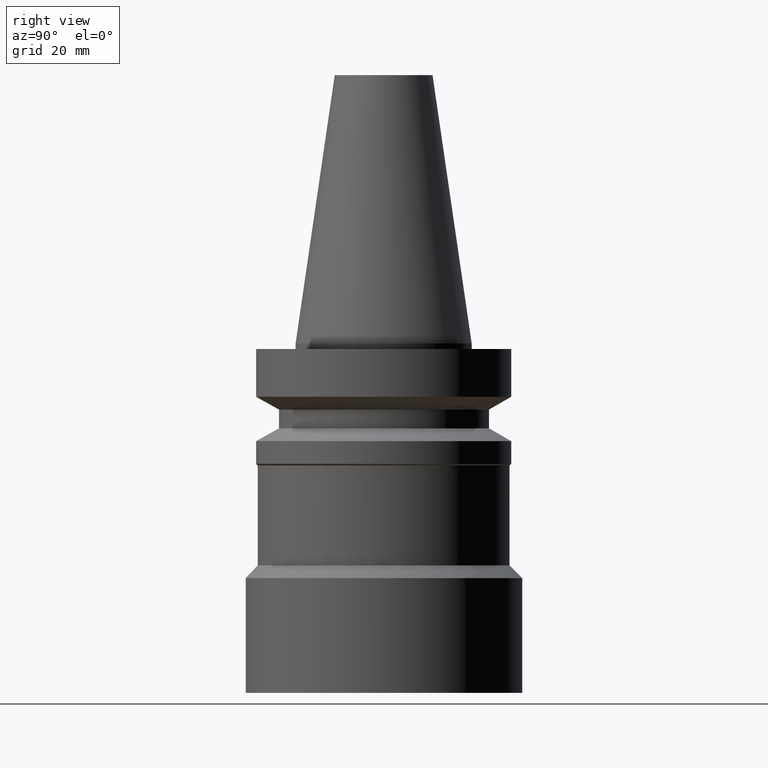
[diagram: clean part render]
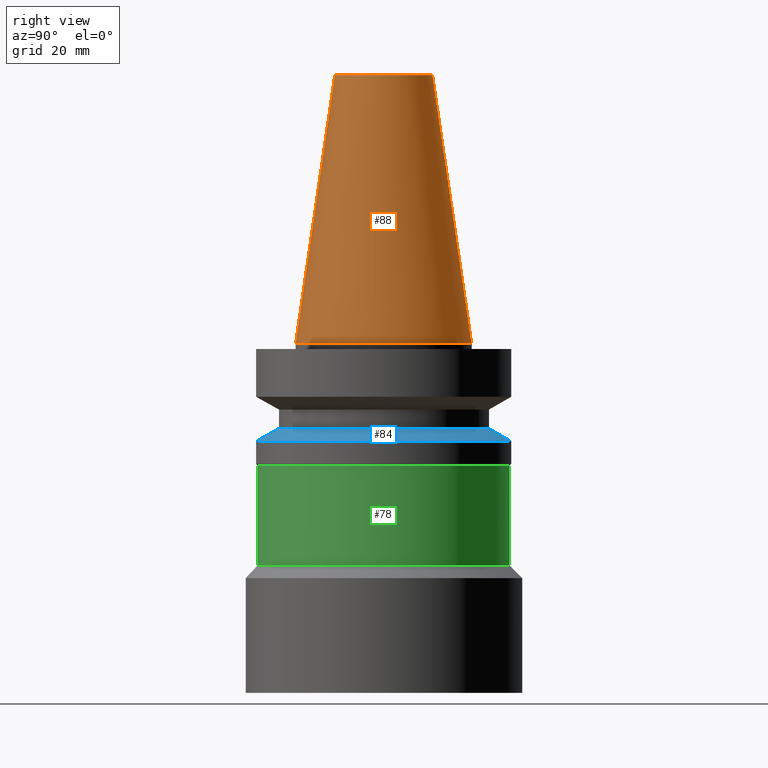
[diagram: same view with three faces highlighted in distinct colors, each labeled with its STEP entity id]
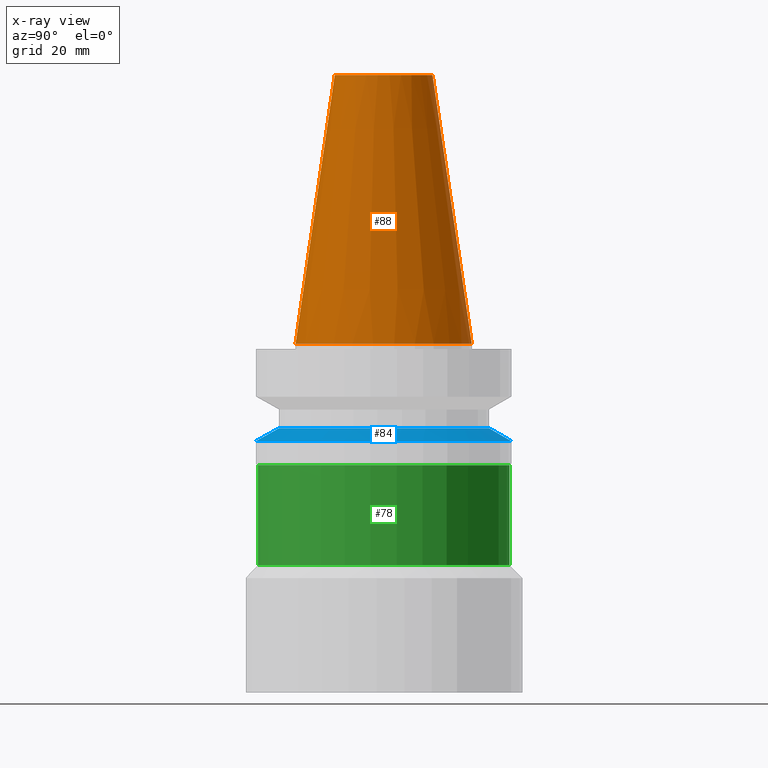
[diagram: x-ray of the same camera — body ghosted, the three highlighted faces saturated]
A machine part, right view with three faces highlighted in distinct colors.
The next image is the same camera in x-ray (body ghosted, the three faces saturated) — at least one of them is partly hidden behind the body in this view.
Their STEP definitions:

[orange] entity #88 — the highlighted conical surface has half-angle 8.297 deg.
#88=ADVANCED_FACE('',(#127,#128),#129,.T.);
#127=FACE_BOUND('',#167,.T.);
#128=FACE_BOUND('',#168,.T.);
#129=CONICAL_SURFACE('',#169,12.3457500000001,0.144815870053811);
#167=EDGE_LOOP('',(#233));
#168=EDGE_LOOP('',(#234));
#169=AXIS2_PLACEMENT_3D('',#235,#236,#237);
#233=ORIENTED_EDGE('',*,*,#243,.F.);
#234=ORIENTED_EDGE('',*,*,#250,.T.);
#235=CARTESIAN_POINT('',(-1.48182262696827E-015,-2.96364525393654E-015,24.1999999999996));
#236=DIRECTION('',(6.12323399573677E-017,1.22464679914735E-016,-1.0));
#237=DIRECTION('',(-1.23259516440783E-032,1.0,1.22464679914735E-016));
#243=EDGE_CURVE('',#261,#261,#262,.T.);
#250=EDGE_CURVE('',#275,#275,#276,.T.);
#261=VERTEX_POINT('',#287);
#262=CIRCLE('',#288,15.8750000000001);
#275=VERTEX_POINT('',#301);
#276=CIRCLE('',#302,8.81650000000001);
#287=CARTESIAN_POINT('',(5.33213906403896E-029,15.8750000000001,-8.72055873206354E-013));
#288=AXIS2_PLACEMENT_3D('',#318,#319,#320);
#301=CARTESIAN_POINT('',(-2.96364525393659E-015,8.8165,48.4));
#302=AXIS2_PLACEMENT_3D('',#339,#340,#341);
#318=CARTESIAN_POINT('',(5.35150790508696E-029,1.07030158101739E-028,-8.73967564984923E-013));
#319=DIRECTION('',(6.12323399573677E-017,1.22464679914735E-016,-1.0));
#320=DIRECTION('',(-1.23259516440783E-032,1.0,1.22464679914735E-016));
#339=CARTESIAN_POINT('',(-2.96364525393659E-015,-5.92729050787319E-015,48.4));
#340=DIRECTION('',(6.12323399573677E-017,1.22464679914735E-016,-1.0));
#341=DIRECTION('',(-1.23259516440783E-032,1.0,1.22464679914735E-016));

[blue] entity #84 — the highlighted conical surface has half-angle 60 deg.
#84=ADVANCED_FACE('',(#116,#117),#118,.T.);
#116=FACE_BOUND('',#156,.T.);
#117=FACE_BOUND('',#157,.T.);
#118=CONICAL_SURFACE('',#158,21.0,1.0471975511966);
#156=EDGE_LOOP('',(#214));
#157=EDGE_LOOP('',(#215));
#158=AXIS2_PLACEMENT_3D('',#216,#217,#218);
#214=ORIENTED_EDGE('',*,*,#248,.F.);
#215=ORIENTED_EDGE('',*,*,#247,.T.);
#216=CARTESIAN_POINT('',(1.00698416733468E-015,2.01396833466935E-015,-16.4452994616207));
#217=DIRECTION('',(6.12323399573677E-017,1.22464679914735E-016,-1.0));
#218=DIRECTION('',(-1.23259516440783E-032,1.0,1.22464679914735E-016));
#247=EDGE_CURVE('',#269,#269,#270,.T.);
#248=EDGE_CURVE('',#271,#271,#272,.T.);
#269=VERTEX_POINT('',#295);
#270=CIRCLE('',#296,19.0);
#271=VERTEX_POINT('',#297);
#272=CIRCLE('',#298,23.0);
#295=CARTESIAN_POINT('',(9.36279151419683E-016,19.0,-15.2905989232415));
#296=AXIS2_PLACEMENT_3D('',#330,#331,#332);
#297=CARTESIAN_POINT('',(1.07768918324967E-015,23.0,-17.6));
#298=AXIS2_PLACEMENT_3D('',#333,#334,#335);
#330=CARTESIAN_POINT('',(9.36279151419684E-016,1.87255830283937E-015,-15.2905989232415));
#331=DIRECTION('',(6.12323399573677E-017,1.22464679914735E-016,-1.0));
#332=DIRECTION('',(-1.23259516440783E-032,1.0,1.22464679914735E-016));
#333=CARTESIAN_POINT('',(1.07768918324967E-015,2.15537836649934E-015,-17.6));
#334=DIRECTION('',(6.12323399573677E-017,1.22464679914735E-016,-1.0));
#335=DIRECTION('',(-1.23259516440783E-032,1.0,1.22464679914735E-016));

[green] entity #78 — the highlighted cylindrical surface (bore or boss wall) has radius 22.7 mm, axis along (-0, -0, 1).
#78=ADVANCED_FACE('',(#98,#99),#100,.T.);
#98=FACE_BOUND('',#138,.T.);
#99=FACE_BOUND('',#139,.T.);
#100=CYLINDRICAL_SURFACE('',#140,22.7);
#138=EDGE_LOOP('',(#184));
#139=EDGE_LOOP('',(#185));
#140=AXIS2_PLACEMENT_3D('',#186,#187,#188);
#184=ORIENTED_EDGE('',*,*,#239,.F.);
#185=ORIENTED_EDGE('',*,*,#241,.T.);
#186=CARTESIAN_POINT('',(1.8981770853947E-015,3.7963541707894E-015,-30.9995843163317));
#187=DIRECTION('',(-6.12323399573676E-017,-1.22464679914735E-016,1.0));
#188=DIRECTION('',(-1.23259516440783E-032,1.0,1.22464679914735E-016));
#239=EDGE_CURVE('',#253,#253,#254,.T.);
#241=EDGE_CURVE('',#257,#257,#258,.T.);
#253=VERTEX_POINT('',#279);
#254=CIRCLE('',#280,22.7);
#257=VERTEX_POINT('',#283);
#258=CIRCLE('',#284,22.7);
#279=CARTESIAN_POINT('',(2.44926814501101E-015,22.7,-39.9995843163317));
#280=AXIS2_PLACEMENT_3D('',#306,#307,#308);
#283=CARTESIAN_POINT('',(1.34708602577839E-015,22.7,-21.9995843163317));
#284=AXIS2_PLACEMENT_3D('',#312,#313,#314);
#306=CARTESIAN_POINT('',(2.44926814501101E-015,4.89853629002202E-015,-39.9995843163317));
#307=DIRECTION('',(6.12323399573676E-017,1.22464679914735E-016,-1.0));
#308=DIRECTION('',(-1.23259516440783E-032,1.0,1.22464679914735E-016));
#312=CARTESIAN_POINT('',(1.34708602577839E-015,2.69417205155679E-015,-21.9995843163317));
#313=DIRECTION('',(6.12323399573676E-017,1.22464679914735E-016,-1.0));
#314=DIRECTION('',(-1.23259516440783E-032,1.0,1.22464679914735E-016));